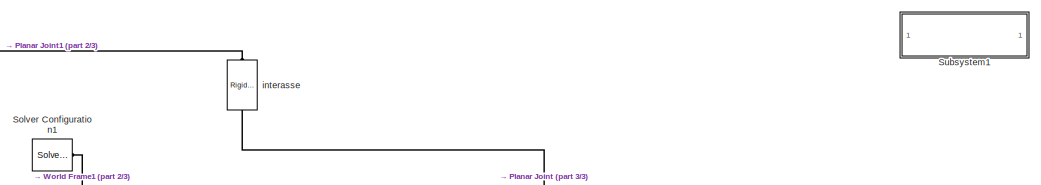
[diagram: root canvas - part 1/3, top center region]
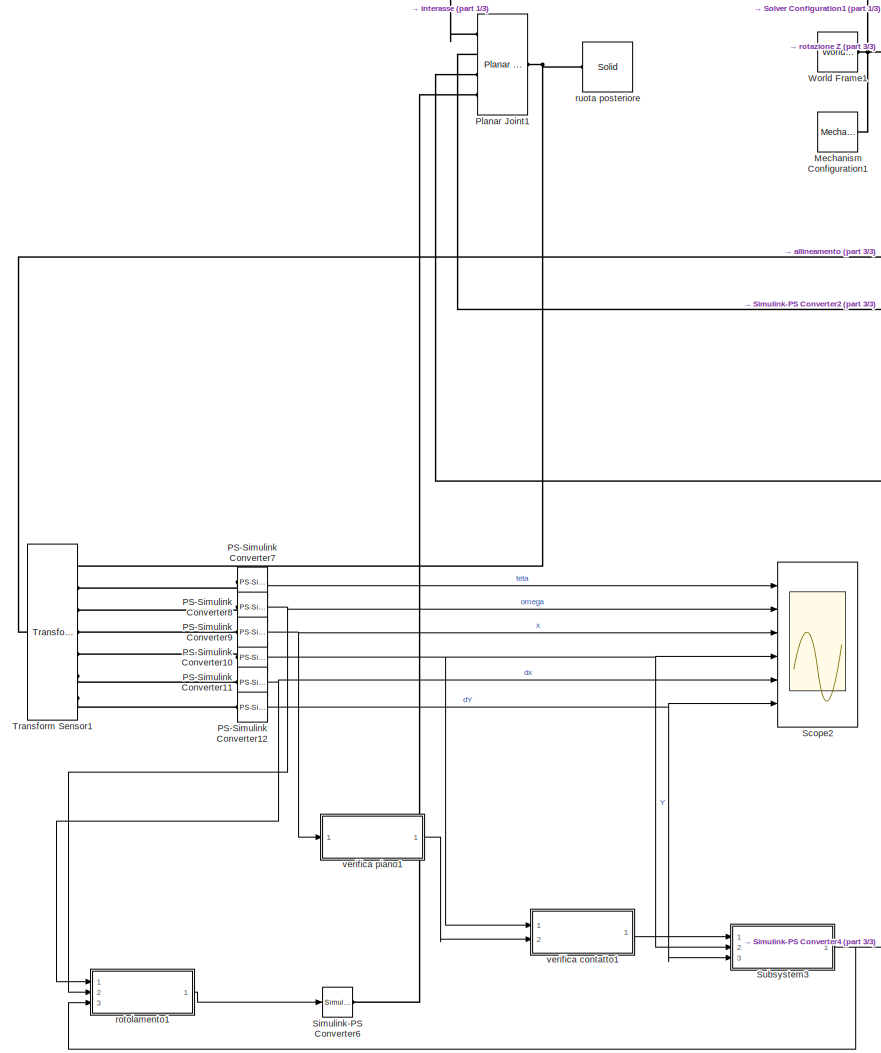
[diagram: root canvas - part 2/3, left side, full height]
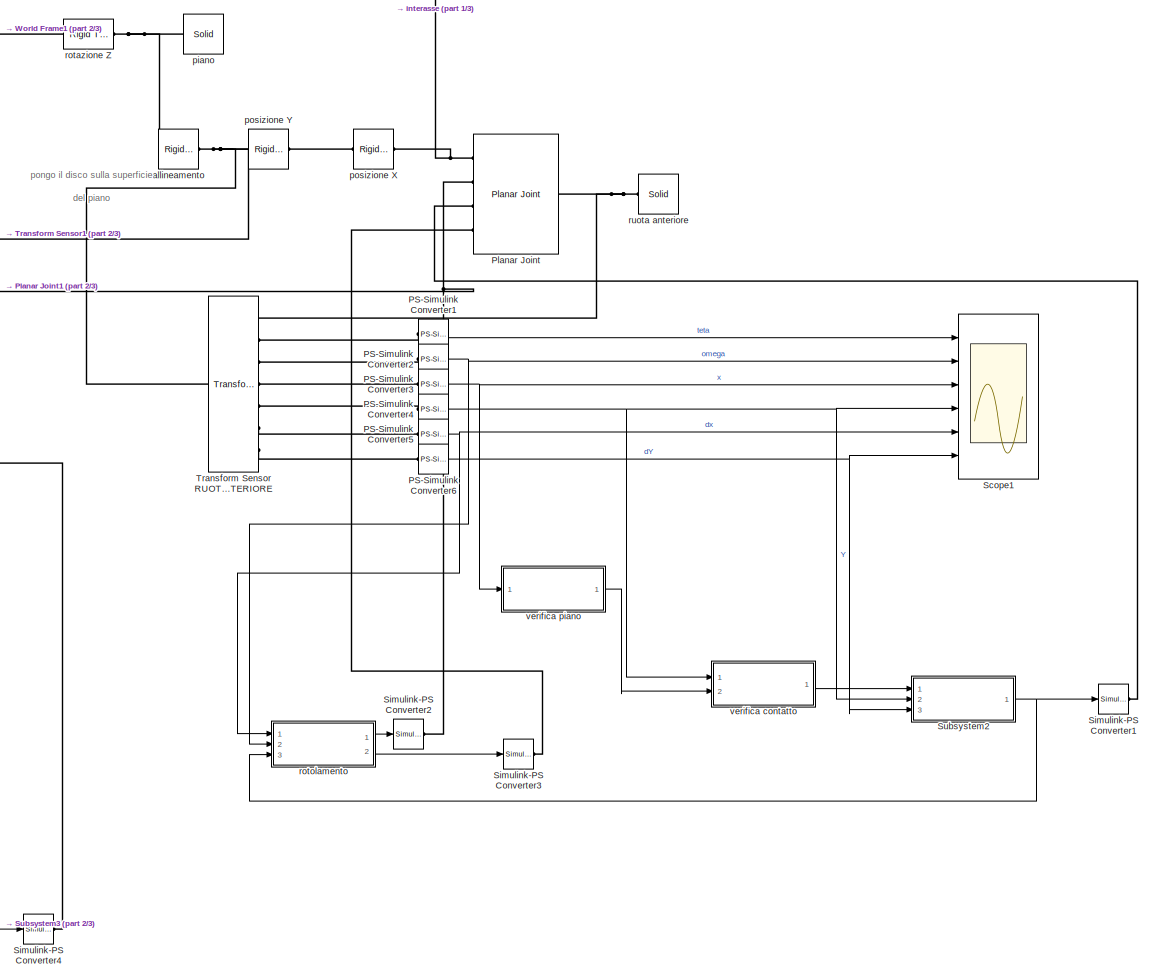
[diagram: root canvas - part 3/3, right side, full height]
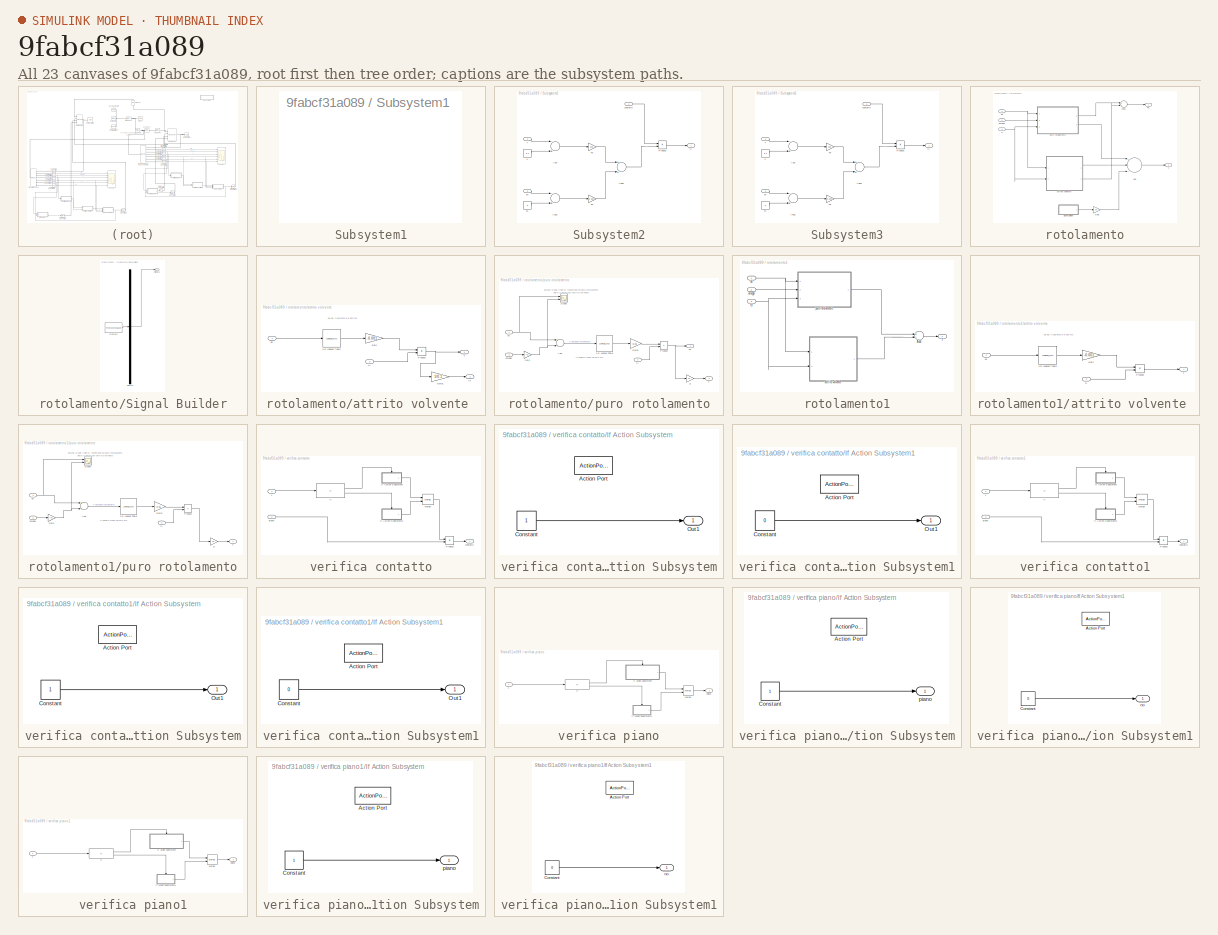
[diagram: thumbnail index - all 23 canvases of the model, root first then tree order]
MODEL slx_9fabcf31a089
KIND model
CONFIG AbsTol = auto
CONFIG EnableMultiTasking = on
CONFIG FixedStep = auto
CONFIG MaxStep = auto
CONFIG MinStep = auto
CONFIG RelTol = 1e-3
CONFIG SampleTimeConstraint = Unconstrained
CONFIG Solver = VariableStepAuto
CONFIG SolverName = VariableStepAuto
CONFIG StartTime = 0.0
CONFIG StopTime = 10.0
BLOCK [Reference] Mechanism Configuration1  REF=sm_lib/Utilities/Mechanism
Configuration
  Ports = [0, 0, 0, 0, 0, 0, 1]
  SourceBlock = sm_lib/Utilities/Mechanism\nConfiguration
  SourceProductBaseCode = MS
  SourceProductName = Simscape Multibody
  SourceType = Mechanism\nConfiguration
BLOCK [Reference] PS-Simulink Converter1  REF=nesl_utility/PS-Simulink
Converter
  Ports = [0, 1, 0, 0, 0, 1]
  SourceBlock = nesl_utility/PS-Simulink\nConverter
  SourceProductBaseCode = SS
  SourceProductName = Simscape
  SourceType = PS-Simulink\nConverter
BLOCK [Reference] PS-Simulink Converter10  REF=nesl_utility/PS-Simulink
Converter
  Ports = [0, 1, 0, 0, 0, 1]
  SourceBlock = nesl_utility/PS-Simulink\nConverter
  SourceProductBaseCode = SS
  SourceProductName = Simscape
  SourceType = PS-Simulink\nConverter
BLOCK [Reference] PS-Simulink Converter11  REF=nesl_utility/PS-Simulink
Converter
  Ports = [0, 1, 0, 0, 0, 1]
  SourceBlock = nesl_utility/PS-Simulink\nConverter
  SourceProductBaseCode = SS
  SourceProductName = Simscape
  SourceType = PS-Simulink\nConverter
BLOCK [Reference] PS-Simulink Converter12  REF=nesl_utility/PS-Simulink
Converter
  Ports = [0, 1, 0, 0, 0, 1]
  SourceBlock = nesl_utility/PS-Simulink\nConverter
  SourceProductBaseCode = SS
  SourceProductName = Simscape
  SourceType = PS-Simulink\nConverter
BLOCK [Reference] PS-Simulink Converter2  REF=nesl_utility/PS-Simulink
Converter
  Ports = [0, 1, 0, 0, 0, 1]
  SourceBlock = nesl_utility/PS-Simulink\nConverter
  SourceProductBaseCode = SS
  SourceProductName = Simscape
  SourceType = PS-Simulink\nConverter
BLOCK [Reference] PS-Simulink Converter3  REF=nesl_utility/PS-Simulink
Converter
  Ports = [0, 1, 0, 0, 0, 1]
  SourceBlock = nesl_utility/PS-Simulink\nConverter
  SourceProductBaseCode = SS
  SourceProductName = Simscape
  SourceType = PS-Simulink\nConverter
BLOCK [Reference] PS-Simulink Converter4  REF=nesl_utility/PS-Simulink
Converter
  Ports = [0, 1, 0, 0, 0, 1]
  SourceBlock = nesl_utility/PS-Simulink\nConverter
  SourceProductBaseCode = SS
  SourceProductName = Simscape
  SourceType = PS-Simulink\nConverter
BLOCK [Reference] PS-Simulink Converter5  REF=nesl_utility/PS-Simulink
Converter
  Ports = [0, 1, 0, 0, 0, 1]
  SourceBlock = nesl_utility/PS-Simulink\nConverter
  SourceProductBaseCode = SS
  SourceProductName = Simscape
  SourceType = PS-Simulink\nConverter
BLOCK [Reference] PS-Simulink Converter6  REF=nesl_utility/PS-Simulink
Converter
  Ports = [0, 1, 0, 0, 0, 1]
  SourceBlock = nesl_utility/PS-Simulink\nConverter
  SourceProductBaseCode = SS
  SourceProductName = Simscape
  SourceType = PS-Simulink\nConverter
BLOCK [Reference] PS-Simulink Converter7  REF=nesl_utility/PS-Simulink
Converter
  Ports = [0, 1, 0, 0, 0, 1]
  SourceBlock = nesl_utility/PS-Simulink\nConverter
  SourceProductBaseCode = SS
  SourceProductName = Simscape
  SourceType = PS-Simulink\nConverter
BLOCK [Reference] PS-Simulink Converter8  REF=nesl_utility/PS-Simulink
Converter
  Ports = [0, 1, 0, 0, 0, 1]
  SourceBlock = nesl_utility/PS-Simulink\nConverter
  SourceProductBaseCode = SS
  SourceProductName = Simscape
  SourceType = PS-Simulink\nConverter
BLOCK [Reference] PS-Simulink Converter9  REF=nesl_utility/PS-Simulink
Converter
  Ports = [0, 1, 0, 0, 0, 1]
  SourceBlock = nesl_utility/PS-Simulink\nConverter
  SourceProductBaseCode = SS
  SourceProductName = Simscape
  SourceType = PS-Simulink\nConverter
BLOCK [Reference] Planar Joint  REF=sm_lib/Joints/Planar Joint
  Ports = [0, 0, 0, 0, 0, 4, 1]
  SourceBlock = sm_lib/Joints/Planar Joint
  SourceProductBaseCode = MS
  SourceProductName = Simscape Multibody
  SourceType = Planar Joint
BLOCK [Reference] Planar Joint1  REF=sm_lib/Joints/Planar Joint
  Ports = [0, 0, 0, 0, 0, 4, 1]
  SourceBlock = sm_lib/Joints/Planar Joint
  SourceProductBaseCode = MS
  SourceProductName = Simscape Multibody
  SourceType = Planar Joint
BLOCK [Scope] Scope1
  Floating = off
  NumInputPorts = 6
  Ports = [6]
  ScopeSpecificationString = Simulink.scopes.TimeScopeBlockCfg('CurrentConfiguration', extmgr.ConfigurationSet(extmgr.Configuration('Core','General UI',true),extmgr.Configuration('Core','Source UI',true),extmgr.Configuration('Sources','WiredSimulink',true,'SampleTime','1e-3','DataLoggingVariableName','ScopeData1'),extmgr.Configuration('Visuals','Time Domain',true,'SerializedDisplays',{struct('MinYLimReal','-0.3927','MaxYLimRe...<+4755ch>
BLOCK [Scope] Scope2
  Floating = off
  NumInputPorts = 6
  Ports = [6]
  ScopeSpecificationString = Simulink.scopes.TimeScopeBlockCfg('CurrentConfiguration', extmgr.ConfigurationSet(extmgr.Configuration('Core','General UI',true),extmgr.Configuration('Core','Source UI',true),extmgr.Configuration('Sources','WiredSimulink',true,'SampleTime','1e-3','DataLoggingVariableName','ScopeData2'),extmgr.Configuration('Visuals','Time Domain',true,'SerializedDisplays',{struct('MinYLimReal','-0.3927','MaxYLimRe...<+4755ch>
BLOCK [Reference] Simulink-PS Converter1  REF=nesl_utility/Simulink-PS
Converter
  Ports = [1, 0, 0, 0, 0, 0, 1]
  SourceBlock = nesl_utility/Simulink-PS\nConverter
  SourceProductBaseCode = SS
  SourceProductName = Simscape
  SourceType = Simulink-PS\nConverter
BLOCK [Reference] Simulink-PS Converter2  REF=nesl_utility/Simulink-PS
Converter
  Ports = [1, 0, 0, 0, 0, 0, 1]
  SourceBlock = nesl_utility/Simulink-PS\nConverter
  SourceProductBaseCode = SS
  SourceProductName = Simscape
  SourceType = Simulink-PS\nConverter
BLOCK [Reference] Simulink-PS Converter3  REF=nesl_utility/Simulink-PS
Converter
  Ports = [1, 0, 0, 0, 0, 0, 1]
  SourceBlock = nesl_utility/Simulink-PS\nConverter
  SourceProductBaseCode = SS
  SourceProductName = Simscape
  SourceType = Simulink-PS\nConverter
BLOCK [Reference] Simulink-PS Converter4  REF=nesl_utility/Simulink-PS
Converter
  Ports = [1, 0, 0, 0, 0, 0, 1]
  SourceBlock = nesl_utility/Simulink-PS\nConverter
  SourceProductBaseCode = SS
  SourceProductName = Simscape
  SourceType = Simulink-PS\nConverter
BLOCK [Reference] Simulink-PS Converter6  REF=nesl_utility/Simulink-PS
Converter
  Ports = [1, 0, 0, 0, 0, 0, 1]
  SourceBlock = nesl_utility/Simulink-PS\nConverter
  SourceProductBaseCode = SS
  SourceProductName = Simscape
  SourceType = Simulink-PS\nConverter
BLOCK [Reference] Solver Configuration1  REF=nesl_utility/Solver
Configuration
  Ports = [0, 0, 0, 0, 0, 0, 1]
  SourceBlock = nesl_utility/Solver\nConfiguration
  SourceProductBaseCode = SS
  SourceProductName = Simscape
  SourceType = Solver\nConfiguration
BLOCK [SubSystem] Subsystem1
  OpenFcn = open_system('sm_lib')
  Ports = []
  RequestExecContextInheritance = off
  ShowPortLabels = none
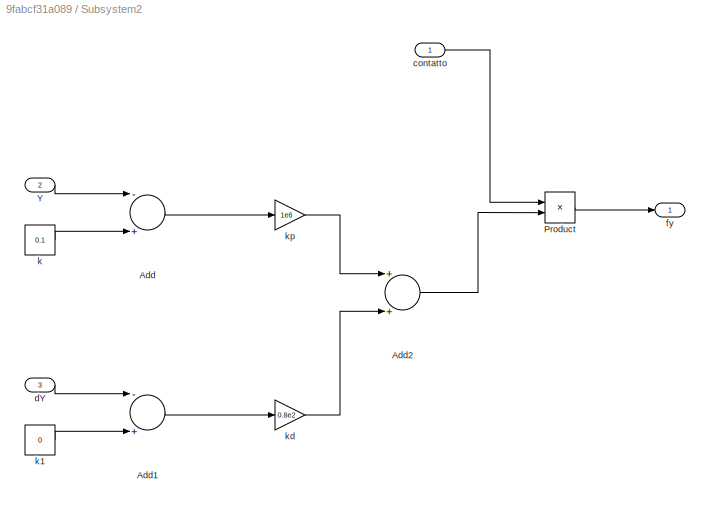
BLOCK [SubSystem] Subsystem2
  Ports = [3, 1]
  RequestExecContextInheritance = off
BLOCK [Sum] Subsystem2/Add
  InputSameDT = off
  Inputs = -+
  OutDataTypeStr = Inherit: Inherit via internal rule
  Ports = [2, 1]
  SaturateOnIntegerOverflow = off
BLOCK [Sum] Subsystem2/Add1
  InputSameDT = off
  Inputs = -+
  OutDataTypeStr = Inherit: Inherit via internal rule
  Ports = [2, 1]
  SaturateOnIntegerOverflow = off
BLOCK [Sum] Subsystem2/Add2
  InputSameDT = off
  OutDataTypeStr = Inherit: Inherit via internal rule
  Ports = [2, 1]
  SaturateOnIntegerOverflow = off
BLOCK [Product] Subsystem2/Product
  InputSameDT = off
  OutDataTypeStr = Inherit: Inherit via internal rule
  Ports = [2, 1]
  RndMeth = Floor
  SaturateOnIntegerOverflow = off
BLOCK [Inport] Subsystem2/Y
  IconDisplay = Port number
  Port = 2
BLOCK [Inport] Subsystem2/contatto
  IconDisplay = Port number
BLOCK [Inport] Subsystem2/dY
  IconDisplay = Port number
  Port = 3
BLOCK [Outport] Subsystem2/fy 
  IconDisplay = Port number
BLOCK [Constant] Subsystem2/k
  Value = 0.1
BLOCK [Constant] Subsystem2/k1
  Value = 0
BLOCK [Gain] Subsystem2/kd
  Gain = 0.8e2
  OutDataTypeStr = Inherit: Inherit via internal rule
  ParamDataTypeStr = Inherit: Inherit via internal rule
  SaturateOnIntegerOverflow = off
BLOCK [Gain] Subsystem2/kp
  Gain = 1e6
  OutDataTypeStr = Inherit: Inherit via internal rule
  ParamDataTypeStr = Inherit: Inherit via internal rule
  SaturateOnIntegerOverflow = off
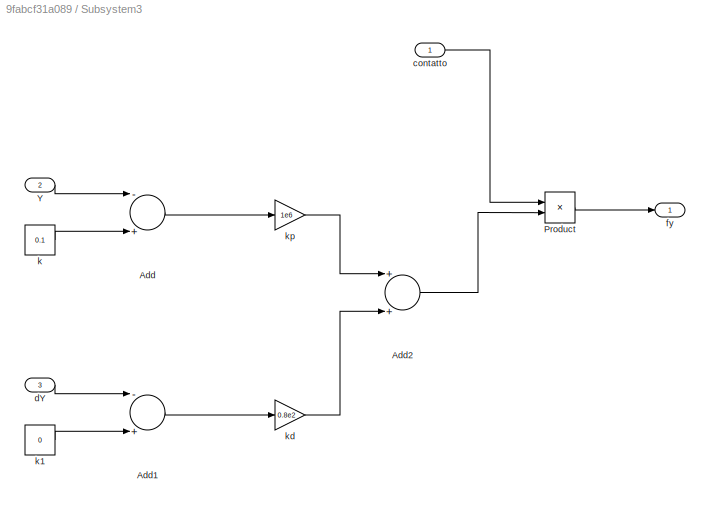
BLOCK [SubSystem] Subsystem3
  Ports = [3, 1]
  RequestExecContextInheritance = off
BLOCK [Sum] Subsystem3/Add
  InputSameDT = off
  Inputs = -+
  OutDataTypeStr = Inherit: Inherit via internal rule
  Ports = [2, 1]
  SaturateOnIntegerOverflow = off
BLOCK [Sum] Subsystem3/Add1
  InputSameDT = off
  Inputs = -+
  OutDataTypeStr = Inherit: Inherit via internal rule
  Ports = [2, 1]
  SaturateOnIntegerOverflow = off
BLOCK [Sum] Subsystem3/Add2
  InputSameDT = off
  OutDataTypeStr = Inherit: Inherit via internal rule
  Ports = [2, 1]
  SaturateOnIntegerOverflow = off
BLOCK [Product] Subsystem3/Product
  InputSameDT = off
  OutDataTypeStr = Inherit: Inherit via internal rule
  Ports = [2, 1]
  RndMeth = Floor
  SaturateOnIntegerOverflow = off
BLOCK [Inport] Subsystem3/Y
  IconDisplay = Port number
  Port = 2
BLOCK [Inport] Subsystem3/contatto
  IconDisplay = Port number
BLOCK [Inport] Subsystem3/dY
  IconDisplay = Port number
  Port = 3
BLOCK [Outport] Subsystem3/fy 
  IconDisplay = Port number
BLOCK [Constant] Subsystem3/k
  Value = 0.1
BLOCK [Constant] Subsystem3/k1
  Value = 0
BLOCK [Gain] Subsystem3/kd
  Gain = 0.8e2
  OutDataTypeStr = Inherit: Inherit via internal rule
  ParamDataTypeStr = Inherit: Inherit via internal rule
  SaturateOnIntegerOverflow = off
BLOCK [Gain] Subsystem3/kp
  Gain = 1e6
  OutDataTypeStr = Inherit: Inherit via internal rule
  ParamDataTypeStr = Inherit: Inherit via internal rule
  SaturateOnIntegerOverflow = off
BLOCK [Reference] Transform Sensor RUOTA ANTERIORE  REF=sm_lib/Frames and
Transforms/Transform
Sensor
  Ports = [0, 0, 0, 0, 0, 1, 7]
  SourceBlock = sm_lib/Frames and\nTransforms/Transform\nSensor
  SourceProductBaseCode = MS
  SourceProductName = Simscape Multibody
  SourceType = Transform\nSensor
BLOCK [Reference] Transform Sensor1  REF=sm_lib/Frames and
Transforms/Transform
Sensor
  Ports = [0, 0, 0, 0, 0, 1, 7]
  SourceBlock = sm_lib/Frames and\nTransforms/Transform\nSensor
  SourceProductBaseCode = MS
  SourceProductName = Simscape Multibody
  SourceType = Transform\nSensor
BLOCK [Reference] World Frame1  REF=sm_lib/Frames and
Transforms/World Frame
  Ports = [0, 0, 0, 0, 0, 0, 1]
  SourceBlock = sm_lib/Frames and\nTransforms/World Frame
  SourceProductBaseCode = MS
  SourceProductName = Simscape Multibody
  SourceType = World Frame
BLOCK [Reference] allineamento  REF=sm_lib/Frames and
Transforms/Rigid
Transform
  Ports = [0, 0, 0, 0, 0, 1, 1]
  SourceBlock = sm_lib/Frames and\nTransforms/Rigid\nTransform
  SourceProductBaseCode = MS
  SourceProductName = Simscape Multibody
  SourceType = Rigid\nTransform
BLOCK [Reference] interasse  REF=sm_lib/Frames and
Transforms/Rigid
Transform
  Ports = [0, 0, 0, 0, 0, 1, 1]
  SourceBlock = sm_lib/Frames and\nTransforms/Rigid\nTransform
  SourceProductBaseCode = MS
  SourceProductName = Simscape Multibody
  SourceType = Rigid\nTransform
BLOCK [Reference] piano  REF=sm_lib/Body Elements/Solid
  Ports = [0, 0, 0, 0, 0, 0, 1]
  SourceBlock = sm_lib/Body Elements/Solid
  SourceProductBaseCode = MS
  SourceProductName = Simscape Multibody
  SourceType = Solid
BLOCK [Reference] posizione X  REF=sm_lib/Frames and
Transforms/Rigid
Transform
  Ports = [0, 0, 0, 0, 0, 1, 1]
  SourceBlock = sm_lib/Frames and\nTransforms/Rigid\nTransform
  SourceProductBaseCode = MS
  SourceProductName = Simscape Multibody
  SourceType = Rigid\nTransform
BLOCK [Reference] posizione Y  REF=sm_lib/Frames and
Transforms/Rigid
Transform
  Ports = [0, 0, 0, 0, 0, 1, 1]
  SourceBlock = sm_lib/Frames and\nTransforms/Rigid\nTransform
  SourceProductBaseCode = MS
  SourceProductName = Simscape Multibody
  SourceType = Rigid\nTransform
BLOCK [Reference] rotazione Z  REF=sm_lib/Frames and
Transforms/Rigid
Transform
  Ports = [0, 0, 0, 0, 0, 1, 1]
  SourceBlock = sm_lib/Frames and\nTransforms/Rigid\nTransform
  SourceProductBaseCode = MS
  SourceProductName = Simscape Multibody
  SourceType = Rigid\nTransform
BLOCK [SubSystem] rotolamento
  Ports = [3, 2]
  RequestExecContextInheritance = off
BLOCK [Sum] rotolamento/Add
  InputSameDT = off
  Inputs = +-+
  OutDataTypeStr = Inherit: Inherit via internal rule
  Ports = [3, 1]
  SaturateOnIntegerOverflow = off
BLOCK [Sum] rotolamento/Add1
  InputSameDT = off
  OutDataTypeStr = Inherit: Inherit via internal rule
  Ports = [2, 1]
  SaturateOnIntegerOverflow = off
BLOCK [Outport] rotolamento/Fa
  IconDisplay = Port number
BLOCK [Gain] rotolamento/Gain
  Gain = -1e-2
  OutDataTypeStr = Inherit: Inherit via internal rule
  ParamDataTypeStr = Inherit: Inherit via internal rule
  SaturateOnIntegerOverflow = off
BLOCK [SubSystem] rotolamento/Signal Builder
  ClipboardFcn = sigbuilder_block('clipboard');
  CloseFcn = sigbuilder_block('close');
  ContinueFcn = sigbuilder_block('continue');
  CopyFcn = sigbuilder_block('copy');
  DeleteFcn = sigbuilder_block('delete');
  LoadFcn = sigbuilder_block('load');
  MaskHideContents = on
  ModelCloseFcn = sigbuilder_block('modelClose');
  NameChangeFcn = sigbuilder_block('namechange');
  OpenFcn = sigbuilder_block('open',[319.2 116.4 550.8 400.2 ]);
  PauseFcn = sigbuilder_block('pause');
  Ports = [0, 1]
  PreSaveFcn = sigbuilder_block('preSave');
  RequestExecContextInheritance = off
  StartFcn = sigbuilder_block('start');
  StopFcn = sigbuilder_block('stop');
  Tag = STV Subsys
BLOCK [Demux] rotolamento/Signal Builder/Demux
  Outputs = 1
  Ports = [1, 1]
  Tag = STV Demux
BLOCK [FromWorkspace] rotolamento/Signal Builder/FromWs
  SampleTime = 0
  Tag = STV FromWs
  VariableName = tuvar
  ZeroCross = on
BLOCK [Outport] rotolamento/Signal Builder/Signal 1
  IconDisplay = Port number
  Tag = STV Outport
BLOCK [Outport] rotolamento/T
  IconDisplay = Port number
  Port = 2
BLOCK [SubSystem] rotolamento/attrito volvente 
  Ports = [2, 2]
  RequestExecContextInheritance = off
BLOCK [Lookup_n-D] rotolamento/attrito volvente /1-D Lookup Table
  BreakpointsForDimension1 = [-5:0.1:5]
  InternalRulePriority = Speed
  NumberOfTableDimensions = 1
  Ports = [1, 1]
  RndMeth = Simplest
  Table = tanh([-5:0.1:5])
BLOCK [Gain] rotolamento/attrito volvente /Gain
  Gain = -0.001
  OutDataTypeStr = Inherit: Inherit via internal rule
  ParamDataTypeStr = Inherit: Inherit via internal rule
  SaturateOnIntegerOverflow = off
BLOCK [Gain] rotolamento/attrito volvente /Gain1
  Gain = 1/0.1
  OutDataTypeStr = Inherit: Inherit via internal rule
  ParamDataTypeStr = Inherit: Inherit via internal rule
  SaturateOnIntegerOverflow = off
BLOCK [Product] rotolamento/attrito volvente /Product
  InputSameDT = off
  OutDataTypeStr = Inherit: Inherit via internal rule
  Ports = [2, 1]
  RndMeth = Floor
  SaturateOnIntegerOverflow = off
BLOCK [Outport] rotolamento/attrito volvente /T
  IconDisplay = Port number
BLOCK [Inport] rotolamento/attrito volvente /dx
  IconDisplay = Port number
BLOCK [Outport] rotolamento/attrito volvente /fx
  IconDisplay = Port number
  Port = 2
BLOCK [Inport] rotolamento/attrito volvente /fy
  IconDisplay = Port number
  Port = 2
BLOCK [Inport] rotolamento/dx
  IconDisplay = Port number
BLOCK [Inport] rotolamento/fy
  IconDisplay = Port number
  Port = 3
BLOCK [Inport] rotolamento/omega
  IconDisplay = Port number
  Port = 2
BLOCK [SubSystem] rotolamento/puro rotolamento
  Ports = [3, 2]
  RequestExecContextInheritance = off
BLOCK [Lookup_n-D] rotolamento/puro rotolamento/1-D Lookup Table
  BreakpointsForDimension1 = [-5:0.1:5]
  InternalRulePriority = Speed
  NumberOfTableDimensions = 1
  Ports = [1, 1]
  RndMeth = Simplest
  Table = tanh([-5:0.1:5])
BLOCK [Sum] rotolamento/puro rotolamento/Add
  InputSameDT = off
  Inputs = +-
  OutDataTypeStr = Inherit: Inherit via internal rule
  Ports = [2, 1]
  SaturateOnIntegerOverflow = off
BLOCK [Outport] rotolamento/puro rotolamento/Fa
  IconDisplay = Port number
BLOCK [Gain] rotolamento/puro rotolamento/Gain
  Gain = -0.1
  OutDataTypeStr = Inherit: Inherit via internal rule
  ParamDataTypeStr = Inherit: Inherit via internal rule
  SaturateOnIntegerOverflow = off
BLOCK [Gain] rotolamento/puro rotolamento/Gain1
  Gain = -0.05
  OutDataTypeStr = Inherit: Inherit via internal rule
  ParamDataTypeStr = Inherit: Inherit via internal rule
  SaturateOnIntegerOverflow = off
BLOCK [Product] rotolamento/puro rotolamento/Product
  InputSameDT = off
  OutDataTypeStr = Inherit: Inherit via internal rule
  Ports = [2, 1]
  RndMeth = Floor
  SaturateOnIntegerOverflow = off
BLOCK [Gain] rotolamento/puro rotolamento/R
  Gain = 0.1
  OutDataTypeStr = Inherit: Inherit via internal rule
  ParamDataTypeStr = Inherit: Inherit via internal rule
  SaturateOnIntegerOverflow = off
BLOCK [Scope] rotolamento/puro rotolamento/Scope
  Floating = off
  NumInputPorts = 2
  Ports = [2]
  ScopeSpecificationString = Simulink.scopes.TimeScopeBlockCfg('CurrentConfiguration', extmgr.ConfigurationSet(extmgr.Configuration('Core','General UI',true),extmgr.Configuration('Core','Source UI',true),extmgr.Configuration('Sources','WiredSimulink',true,'DataLoggingVariableName','ScopeData2'),extmgr.Configuration('Visuals','Time Domain',true,'SerializedDisplays',{struct('MinYLimReal','-0.0625','MaxYLimReal','0.5625','YLabel...<+1362ch>
BLOCK [Outport] rotolamento/puro rotolamento/T
  IconDisplay = Port number
  Port = 2
BLOCK [Inport] rotolamento/puro rotolamento/dx
  IconDisplay = Port number
BLOCK [Inport] rotolamento/puro rotolamento/fy
  IconDisplay = Port number
  Port = 3
BLOCK [Inport] rotolamento/puro rotolamento/omega
  IconDisplay = Port number
  Port = 2
BLOCK [SubSystem] rotolamento1
  Ports = [3, 1]
  RequestExecContextInheritance = off
BLOCK [Sum] rotolamento1/Add
  InputSameDT = off
  Inputs = +-
  OutDataTypeStr = Inherit: Inherit via internal rule
  Ports = [2, 1]
  SaturateOnIntegerOverflow = off
BLOCK [Outport] rotolamento1/T
  IconDisplay = Port number
BLOCK [SubSystem] rotolamento1/attrito volvente 
  Ports = [2, 1]
  RequestExecContextInheritance = off
BLOCK [Lookup_n-D] rotolamento1/attrito volvente /1-D Lookup Table
  BreakpointsForDimension1 = [-5:0.1:5]
  InternalRulePriority = Speed
  NumberOfTableDimensions = 1
  Ports = [1, 1]
  RndMeth = Simplest
  Table = tanh([-5:0.1:5])
BLOCK [Gain] rotolamento1/attrito volvente /Gain
  Gain = -0.001
  OutDataTypeStr = Inherit: Inherit via internal rule
  ParamDataTypeStr = Inherit: Inherit via internal rule
  SaturateOnIntegerOverflow = off
BLOCK [Product] rotolamento1/attrito volvente /Product
  InputSameDT = off
  OutDataTypeStr = Inherit: Inherit via internal rule
  Ports = [2, 1]
  RndMeth = Floor
  SaturateOnIntegerOverflow = off
BLOCK [Outport] rotolamento1/attrito volvente /T
  IconDisplay = Port number
BLOCK [Inport] rotolamento1/attrito volvente /dx
  IconDisplay = Port number
BLOCK [Inport] rotolamento1/attrito volvente /fy
  IconDisplay = Port number
  Port = 2
BLOCK [Inport] rotolamento1/dx
  IconDisplay = Port number
BLOCK [Inport] rotolamento1/fy
  IconDisplay = Port number
  Port = 3
BLOCK [Inport] rotolamento1/omega
  IconDisplay = Port number
  Port = 2
BLOCK [SubSystem] rotolamento1/puro rotolamento
  Ports = [3, 1]
  RequestExecContextInheritance = off
BLOCK [Lookup_n-D] rotolamento1/puro rotolamento/1-D Lookup Table
  BreakpointsForDimension1 = [-5:0.1:5]
  InternalRulePriority = Speed
  NumberOfTableDimensions = 1
  Ports = [1, 1]
  RndMeth = Simplest
  Table = tanh([-5:0.1:5])
BLOCK [Sum] rotolamento1/puro rotolamento/Add
  InputSameDT = off
  Inputs = +-
  OutDataTypeStr = Inherit: Inherit via internal rule
  Ports = [2, 1]
  SaturateOnIntegerOverflow = off
BLOCK [Gain] rotolamento1/puro rotolamento/Gain
  Gain = -0.1
  OutDataTypeStr = Inherit: Inherit via internal rule
  ParamDataTypeStr = Inherit: Inherit via internal rule
  SaturateOnIntegerOverflow = off
BLOCK [Gain] rotolamento1/puro rotolamento/Gain1
  Gain = -0.05
  OutDataTypeStr = Inherit: Inherit via internal rule
  ParamDataTypeStr = Inherit: Inherit via internal rule
  SaturateOnIntegerOverflow = off
BLOCK [Product] rotolamento1/puro rotolamento/Product
  InputSameDT = off
  OutDataTypeStr = Inherit: Inherit via internal rule
  Ports = [2, 1]
  RndMeth = Floor
  SaturateOnIntegerOverflow = off
BLOCK [Gain] rotolamento1/puro rotolamento/R
  Gain = 0.1
  OutDataTypeStr = Inherit: Inherit via internal rule
  ParamDataTypeStr = Inherit: Inherit via internal rule
  SaturateOnIntegerOverflow = off
BLOCK [Scope] rotolamento1/puro rotolamento/Scope
  Floating = off
  NumInputPorts = 2
  Ports = [2]
  ScopeSpecificationString = Simulink.scopes.TimeScopeBlockCfg('CurrentConfiguration', extmgr.ConfigurationSet(extmgr.Configuration('Core','General UI',true),extmgr.Configuration('Core','Source UI',true),extmgr.Configuration('Sources','WiredSimulink',true,'DataLoggingVariableName','ScopeData2'),extmgr.Configuration('Visuals','Time Domain',true,'SerializedDisplays',{struct('MinYLimReal','-0.0625','MaxYLimReal','0.5625','YLabel...<+1362ch>
BLOCK [Outport] rotolamento1/puro rotolamento/T
  IconDisplay = Port number
BLOCK [Inport] rotolamento1/puro rotolamento/dx
  IconDisplay = Port number
BLOCK [Inport] rotolamento1/puro rotolamento/fy
  IconDisplay = Port number
  Port = 3
BLOCK [Inport] rotolamento1/puro rotolamento/omega
  IconDisplay = Port number
  Port = 2
BLOCK [Reference] ruota anteriore  REF=sm_lib/Body Elements/Solid
  Ports = [0, 0, 0, 0, 0, 0, 1]
  SourceBlock = sm_lib/Body Elements/Solid
  SourceProductBaseCode = MS
  SourceProductName = Simscape Multibody
  SourceType = Solid
BLOCK [Reference] ruota posteriore  REF=sm_lib/Body Elements/Solid
  Ports = [0, 0, 0, 0, 0, 0, 1]
  SourceBlock = sm_lib/Body Elements/Solid
  SourceProductBaseCode = MS
  SourceProductName = Simscape Multibody
  SourceType = Solid
BLOCK [SubSystem] verifica contatto
  Ports = [2, 1]
  RequestExecContextInheritance = off
BLOCK [If] verifica contatto/If
  IfExpression = u1 <=0.1
  Ports = [1, 2]
BLOCK [SubSystem] verifica contatto/If Action Subsystem
  Ports = [0, 1, 0, 0, 0, 0, 0, 1]
  RequestExecContextInheritance = off
  TreatAsAtomicUnit = on
BLOCK [ActionPort] verifica contatto/If Action Subsystem/Action Port
  ActionPortLabel = if(u1 <=0.1)
BLOCK [Constant] verifica contatto/If Action Subsystem/Constant
BLOCK [Outport] verifica contatto/If Action Subsystem/Out1
  IconDisplay = Port number
BLOCK [SubSystem] verifica contatto/If Action Subsystem1
  Ports = [0, 1, 0, 0, 0, 0, 0, 1]
  RequestExecContextInheritance = off
  TreatAsAtomicUnit = on
BLOCK [ActionPort] verifica contatto/If Action Subsystem1/Action Port
  ActionPortLabel = else
BLOCK [Constant] verifica contatto/If Action Subsystem1/Constant
  Value = 0
BLOCK [Outport] verifica contatto/If Action Subsystem1/Out1
  IconDisplay = Port number
BLOCK [Merge] verifica contatto/Merge
  Ports = [2, 1]
BLOCK [Product] verifica contatto/Product
  InputSameDT = off
  OutDataTypeStr = Inherit: Inherit via internal rule
  Ports = [2, 1]
  RndMeth = Floor
  SaturateOnIntegerOverflow = off
BLOCK [Inport] verifica contatto/Y
  IconDisplay = Port number
BLOCK [Outport] verifica contatto/contatto
  IconDisplay = Port number
BLOCK [Inport] verifica contatto/piano
  IconDisplay = Port number
  Port = 2
BLOCK [SubSystem] verifica contatto1
  Ports = [2, 1]
  RequestExecContextInheritance = off
BLOCK [If] verifica contatto1/If
  IfExpression = u1 <=0.1
  Ports = [1, 2]
BLOCK [SubSystem] verifica contatto1/If Action Subsystem
  Ports = [0, 1, 0, 0, 0, 0, 0, 1]
  RequestExecContextInheritance = off
  TreatAsAtomicUnit = on
BLOCK [ActionPort] verifica contatto1/If Action Subsystem/Action Port
  ActionPortLabel = if(u1 <=0.1)
BLOCK [Constant] verifica contatto1/If Action Subsystem/Constant
BLOCK [Outport] verifica contatto1/If Action Subsystem/Out1
  IconDisplay = Port number
BLOCK [SubSystem] verifica contatto1/If Action Subsystem1
  Ports = [0, 1, 0, 0, 0, 0, 0, 1]
  RequestExecContextInheritance = off
  TreatAsAtomicUnit = on
BLOCK [ActionPort] verifica contatto1/If Action Subsystem1/Action Port
  ActionPortLabel = else
BLOCK [Constant] verifica contatto1/If Action Subsystem1/Constant
  Value = 0
BLOCK [Outport] verifica contatto1/If Action Subsystem1/Out1
  IconDisplay = Port number
BLOCK [Merge] verifica contatto1/Merge
  Ports = [2, 1]
BLOCK [Product] verifica contatto1/Product
  InputSameDT = off
  OutDataTypeStr = Inherit: Inherit via internal rule
  Ports = [2, 1]
  RndMeth = Floor
  SaturateOnIntegerOverflow = off
BLOCK [Inport] verifica contatto1/Y
  IconDisplay = Port number
BLOCK [Outport] verifica contatto1/contatto
  IconDisplay = Port number
BLOCK [Inport] verifica contatto1/piano
  IconDisplay = Port number
  Port = 2
BLOCK [SubSystem] verifica piano
  Ports = [1, 1]
  RequestExecContextInheritance = off
BLOCK [If] verifica piano/If
  IfExpression = u1<5 & u1>-5
  Ports = [1, 2]
BLOCK [SubSystem] verifica piano/If Action Subsystem
  Ports = [0, 1, 0, 0, 0, 0, 0, 1]
  RequestExecContextInheritance = off
  TreatAsAtomicUnit = on
BLOCK [ActionPort] verifica piano/If Action Subsystem/Action Port
  ActionPortLabel = if(u1<5 & u1>-5)
BLOCK [Constant] verifica piano/If Action Subsystem/Constant
BLOCK [Outport] verifica piano/If Action Subsystem/piano
  IconDisplay = Port number
BLOCK [SubSystem] verifica piano/If Action Subsystem1
  Ports = [0, 1, 0, 0, 0, 0, 0, 1]
  RequestExecContextInheritance = off
  TreatAsAtomicUnit = on
BLOCK [ActionPort] verifica piano/If Action Subsystem1/Action Port
  ActionPortLabel = else
BLOCK [Constant] verifica piano/If Action Subsystem1/Constant
  Value = 0
BLOCK [Outport] verifica piano/If Action Subsystem1/no
  IconDisplay = Port number
BLOCK [Merge] verifica piano/Merge
  Ports = [2, 1]
BLOCK [Outport] verifica piano/piano
  IconDisplay = Port number
BLOCK [Inport] verifica piano/x
  IconDisplay = Port number
BLOCK [SubSystem] verifica piano1
  Ports = [1, 1]
  RequestExecContextInheritance = off
BLOCK [If] verifica piano1/If
  IfExpression = u1<5 & u1>-5
  Ports = [1, 2]
BLOCK [SubSystem] verifica piano1/If Action Subsystem
  Ports = [0, 1, 0, 0, 0, 0, 0, 1]
  RequestExecContextInheritance = off
  TreatAsAtomicUnit = on
BLOCK [ActionPort] verifica piano1/If Action Subsystem/Action Port
  ActionPortLabel = if(u1<5 & u1>-5)
BLOCK [Constant] verifica piano1/If Action Subsystem/Constant
BLOCK [Outport] verifica piano1/If Action Subsystem/piano
  IconDisplay = Port number
BLOCK [SubSystem] verifica piano1/If Action Subsystem1
  Ports = [0, 1, 0, 0, 0, 0, 0, 1]
  RequestExecContextInheritance = off
  TreatAsAtomicUnit = on
BLOCK [ActionPort] verifica piano1/If Action Subsystem1/Action Port
  ActionPortLabel = else
BLOCK [Constant] verifica piano1/If Action Subsystem1/Constant
  Value = 0
BLOCK [Outport] verifica piano1/If Action Subsystem1/no
  IconDisplay = Port number
BLOCK [Merge] verifica piano1/Merge
  Ports = [2, 1]
BLOCK [Outport] verifica piano1/piano
  IconDisplay = Port number
BLOCK [Inport] verifica piano1/x
  IconDisplay = Port number
ANNOTATION (root): pongo il disco sulla superficie del piano
ANNOTATION rotolamento/attrito volvente : da qui ricaviamo b e non mu
ANNOTATION rotolamento/puro rotolamento: poichè le due linee si incontrano ho puro rotolamento però lo perdo con l'attrito volvente
ANNOTATION rotolamento/puro rotolamento: in questo modo calcolo mu
ANNOTATION rotolamento1/attrito volvente : da qui ricaviamo b e non mu
ANNOTATION rotolamento1/puro rotolamento: poichè le due linee si incontrano ho puro rotolamento però lo perdo con l'attrito volvente
ANNOTATION rotolamento1/puro rotolamento: in questo modo calcolo mu
NET PS-Simulink Converter10:1 -> Scope2:4, Subsystem3:2, verifica contatto1:1
NET PS-Simulink Converter11:1 -> Scope2:5, rotolamento1:1
NET PS-Simulink Converter12:1 -> Scope2:6, Subsystem3:3
LINE PS-Simulink Converter1:1 -> Scope1:1
NET PS-Simulink Converter2:1 -> Scope1:2, rotolamento:2
NET PS-Simulink Converter3:1 -> Scope1:3, verifica piano:1
NET PS-Simulink Converter4:1 -> Scope1:4, Subsystem2:2, verifica contatto:1
NET PS-Simulink Converter5:1 -> Scope1:5, rotolamento:1
NET PS-Simulink Converter6:1 -> Scope1:6, Subsystem2:3
LINE PS-Simulink Converter7:1 -> Scope2:1
NET PS-Simulink Converter8:1 -> Scope2:2, rotolamento1:2
NET PS-Simulink Converter9:1 -> Scope2:3, verifica piano1:1
LINE Subsystem2/Add1:1 -> Subsystem2/kd:1
LINE Subsystem2/Add2:1 -> Subsystem2/Product:2
LINE Subsystem2/Add:1 -> Subsystem2/kp:1
LINE Subsystem2/Product:1 -> Subsystem2/fy :1
LINE Subsystem2/Y:1 -> Subsystem2/Add:1
LINE Subsystem2/contatto:1 -> Subsystem2/Product:1
LINE Subsystem2/dY:1 -> Subsystem2/Add1:1
LINE Subsystem2/k1:1 -> Subsystem2/Add1:2
LINE Subsystem2/k:1 -> Subsystem2/Add:2
LINE Subsystem2/kd:1 -> Subsystem2/Add2:2
LINE Subsystem2/kp:1 -> Subsystem2/Add2:1
NET Subsystem2:1 -> Simulink-PS Converter1:1, rotolamento:3
LINE Subsystem3/Add1:1 -> Subsystem3/kd:1
LINE Subsystem3/Add2:1 -> Subsystem3/Product:2
LINE Subsystem3/Add:1 -> Subsystem3/kp:1
LINE Subsystem3/Product:1 -> Subsystem3/fy :1
LINE Subsystem3/Y:1 -> Subsystem3/Add:1
LINE Subsystem3/contatto:1 -> Subsystem3/Product:1
LINE Subsystem3/dY:1 -> Subsystem3/Add1:1
LINE Subsystem3/k1:1 -> Subsystem3/Add1:2
LINE Subsystem3/k:1 -> Subsystem3/Add:2
LINE Subsystem3/kd:1 -> Subsystem3/Add2:2
LINE Subsystem3/kp:1 -> Subsystem3/Add2:1
NET Subsystem3:1 -> Simulink-PS Converter4:1, rotolamento1:3
LINE rotolamento/Add1:1 -> rotolamento/Fa:1
LINE rotolamento/Add:1 -> rotolamento/T:1
LINE rotolamento/Gain:1 -> rotolamento/Add:3
LINE rotolamento/Signal Builder:1 -> rotolamento/Gain:1
LINE rotolamento/attrito volvente /1-D Lookup Table:1 -> rotolamento/attrito volvente /Gain:1
LINE rotolamento/attrito volvente /Gain1:1 -> rotolamento/attrito volvente /fx:1
LINE rotolamento/attrito volvente /Gain:1 -> rotolamento/attrito volvente /Product:1
NET rotolamento/attrito volvente /Product:1 -> rotolamento/attrito volvente /Gain1:1, rotolamento/attrito volvente /T:1
LINE rotolamento/attrito volvente /dx:1 -> rotolamento/attrito volvente /1-D Lookup Table:1
LINE rotolamento/attrito volvente /fy:1 -> rotolamento/attrito volvente /Product:2
LINE rotolamento/attrito volvente :1 -> rotolamento/Add:2
LINE rotolamento/attrito volvente :2 -> rotolamento/Add1:2
NET rotolamento/dx:1 -> rotolamento/attrito volvente :1, rotolamento/puro rotolamento:1
NET rotolamento/fy:1 -> rotolamento/attrito volvente :2, rotolamento/puro rotolamento:3
LINE rotolamento/omega:1 -> rotolamento/puro rotolamento:2
LINE rotolamento/puro rotolamento/1-D Lookup Table:1 -> rotolamento/puro rotolamento/Gain1:1
LINE rotolamento/puro rotolamento/Add:1 -> rotolamento/puro rotolamento/1-D Lookup Table:1
LINE rotolamento/puro rotolamento/Gain1:1 -> rotolamento/puro rotolamento/Product:1
NET rotolamento/puro rotolamento/Gain:1 -> rotolamento/puro rotolamento/Add:2, rotolamento/puro rotolamento/Scope:2
NET rotolamento/puro rotolamento/Product:1 -> rotolamento/puro rotolamento/Fa:1, rotolamento/puro rotolamento/R:1
LINE rotolamento/puro rotolamento/R:1 -> rotolamento/puro rotolamento/T:1
NET rotolamento/puro rotolamento/dx:1 -> rotolamento/puro rotolamento/Add:1, rotolamento/puro rotolamento/Scope:1
LINE rotolamento/puro rotolamento/fy:1 -> rotolamento/puro rotolamento/Product:2
LINE rotolamento/puro rotolamento/omega:1 -> rotolamento/puro rotolamento/Gain:1
LINE rotolamento/puro rotolamento:1 -> rotolamento/Add1:1
LINE rotolamento/puro rotolamento:2 -> rotolamento/Add:1
LINE rotolamento1/Add:1 -> rotolamento1/T:1
LINE rotolamento1/attrito volvente /1-D Lookup Table:1 -> rotolamento1/attrito volvente /Gain:1
LINE rotolamento1/attrito volvente /Gain:1 -> rotolamento1/attrito volvente /Product:1
LINE rotolamento1/attrito volvente /Product:1 -> rotolamento1/attrito volvente /T:1
LINE rotolamento1/attrito volvente /dx:1 -> rotolamento1/attrito volvente /1-D Lookup Table:1
LINE rotolamento1/attrito volvente /fy:1 -> rotolamento1/attrito volvente /Product:2
LINE rotolamento1/attrito volvente :1 -> rotolamento1/Add:2
NET rotolamento1/dx:1 -> rotolamento1/attrito volvente :1, rotolamento1/puro rotolamento:1
NET rotolamento1/fy:1 -> rotolamento1/attrito volvente :2, rotolamento1/puro rotolamento:3
LINE rotolamento1/omega:1 -> rotolamento1/puro rotolamento:2
LINE rotolamento1/puro rotolamento/1-D Lookup Table:1 -> rotolamento1/puro rotolamento/Gain1:1
LINE rotolamento1/puro rotolamento/Add:1 -> rotolamento1/puro rotolamento/1-D Lookup Table:1
LINE rotolamento1/puro rotolamento/Gain1:1 -> rotolamento1/puro rotolamento/Product:1
NET rotolamento1/puro rotolamento/Gain:1 -> rotolamento1/puro rotolamento/Add:2, rotolamento1/puro rotolamento/Scope:2
LINE rotolamento1/puro rotolamento/Product:1 -> rotolamento1/puro rotolamento/R:1
LINE rotolamento1/puro rotolamento/R:1 -> rotolamento1/puro rotolamento/T:1
NET rotolamento1/puro rotolamento/dx:1 -> rotolamento1/puro rotolamento/Add:1, rotolamento1/puro rotolamento/Scope:1
LINE rotolamento1/puro rotolamento/fy:1 -> rotolamento1/puro rotolamento/Product:2
LINE rotolamento1/puro rotolamento/omega:1 -> rotolamento1/puro rotolamento/Gain:1
LINE rotolamento1/puro rotolamento:1 -> rotolamento1/Add:1
LINE rotolamento1:1 -> Simulink-PS Converter6:1
LINE rotolamento:1 -> Simulink-PS Converter2:1
LINE rotolamento:2 -> Simulink-PS Converter3:1
LINE verifica contatto/If Action Subsystem/Constant:1 -> verifica contatto/If Action Subsystem/Out1:1
LINE verifica contatto/If Action Subsystem1/Constant:1 -> verifica contatto/If Action Subsystem1/Out1:1
LINE verifica contatto/If Action Subsystem1:1 -> verifica contatto/Merge:2
LINE verifica contatto/If Action Subsystem:1 -> verifica contatto/Merge:1
LINE verifica contatto/If:1 -> verifica contatto/If Action Subsystem:ifaction
LINE verifica contatto/If:2 -> verifica contatto/If Action Subsystem1:ifaction
LINE verifica contatto/Merge:1 -> verifica contatto/Product:1
LINE verifica contatto/Product:1 -> verifica contatto/contatto:1
LINE verifica contatto/Y:1 -> verifica contatto/If:1
LINE verifica contatto/piano:1 -> verifica contatto/Product:2
LINE verifica contatto1/If Action Subsystem/Constant:1 -> verifica contatto1/If Action Subsystem/Out1:1
LINE verifica contatto1/If Action Subsystem1/Constant:1 -> verifica contatto1/If Action Subsystem1/Out1:1
LINE verifica contatto1/If Action Subsystem1:1 -> verifica contatto1/Merge:2
LINE verifica contatto1/If Action Subsystem:1 -> verifica contatto1/Merge:1
LINE verifica contatto1/If:1 -> verifica contatto1/If Action Subsystem:ifaction
LINE verifica contatto1/If:2 -> verifica contatto1/If Action Subsystem1:ifaction
LINE verifica contatto1/Merge:1 -> verifica contatto1/Product:1
LINE verifica contatto1/Product:1 -> verifica contatto1/contatto:1
LINE verifica contatto1/Y:1 -> verifica contatto1/If:1
LINE verifica contatto1/piano:1 -> verifica contatto1/Product:2
LINE verifica contatto1:1 -> Subsystem3:1
LINE verifica contatto:1 -> Subsystem2:1
LINE verifica piano/If Action Subsystem/Constant:1 -> verifica piano/If Action Subsystem/piano:1
LINE verifica piano/If Action Subsystem1/Constant:1 -> verifica piano/If Action Subsystem1/no:1
LINE verifica piano/If Action Subsystem1:1 -> verifica piano/Merge:2
LINE verifica piano/If Action Subsystem:1 -> verifica piano/Merge:1
LINE verifica piano/If:1 -> verifica piano/If Action Subsystem:ifaction
LINE verifica piano/If:2 -> verifica piano/If Action Subsystem1:ifaction
LINE verifica piano/Merge:1 -> verifica piano/piano:1
LINE verifica piano/x:1 -> verifica piano/If:1
LINE verifica piano1/If Action Subsystem/Constant:1 -> verifica piano1/If Action Subsystem/piano:1
LINE verifica piano1/If Action Subsystem1/Constant:1 -> verifica piano1/If Action Subsystem1/no:1
LINE verifica piano1/If Action Subsystem1:1 -> verifica piano1/Merge:2
LINE verifica piano1/If Action Subsystem:1 -> verifica piano1/Merge:1
LINE verifica piano1/If:1 -> verifica piano1/If Action Subsystem:ifaction
LINE verifica piano1/If:2 -> verifica piano1/If Action Subsystem1:ifaction
LINE verifica piano1/Merge:1 -> verifica piano1/piano:1
LINE verifica piano1/x:1 -> verifica piano1/If:1
LINE verifica piano1:1 -> verifica contatto1:2
LINE verifica piano:1 -> verifica contatto:2
PNET net1: Mechanism Configuration1:RConn1 -- Solver Configuration1:RConn1 -- World Frame1:RConn1 -- rotazione Z:LConn1
PLINE PS-Simulink Converter10:LConn1 -- Transform Sensor1:RConn5
PLINE PS-Simulink Converter11:LConn1 -- Transform Sensor1:RConn6
PLINE PS-Simulink Converter12:LConn1 -- Transform Sensor1:RConn7
PLINE PS-Simulink Converter1:LConn1 -- Transform Sensor RUOTA ANTERIORE:RConn2
PLINE PS-Simulink Converter2:LConn1 -- Transform Sensor RUOTA ANTERIORE:RConn3
PLINE PS-Simulink Converter3:LConn1 -- Transform Sensor RUOTA ANTERIORE:RConn4
PLINE PS-Simulink Converter4:LConn1 -- Transform Sensor RUOTA ANTERIORE:RConn5
PLINE PS-Simulink Converter5:LConn1 -- Transform Sensor RUOTA ANTERIORE:RConn6
PLINE PS-Simulink Converter6:LConn1 -- Transform Sensor RUOTA ANTERIORE:RConn7
PLINE PS-Simulink Converter7:LConn1 -- Transform Sensor1:RConn2
PLINE PS-Simulink Converter8:LConn1 -- Transform Sensor1:RConn3
PLINE PS-Simulink Converter9:LConn1 -- Transform Sensor1:RConn4
PLINE Planar Joint1:LConn1 -- interasse:RConn1
PNET net2: Planar Joint1:LConn2 -- Planar Joint:LConn2 -- Simulink-PS Converter2:RConn1
PLINE Planar Joint1:LConn3 -- Simulink-PS Converter4:RConn1
PLINE Planar Joint1:LConn4 -- Simulink-PS Converter6:RConn1
PNET net3: Planar Joint1:RConn1 -- Transform Sensor1:RConn1 -- ruota posteriore:RConn1
PNET net4: Planar Joint:LConn1 -- interasse:LConn1 -- posizione X:RConn1
PLINE Planar Joint:LConn3 -- Simulink-PS Converter1:RConn1
PLINE Planar Joint:LConn4 -- Simulink-PS Converter3:RConn1
PNET net5: Planar Joint:RConn1 -- Transform Sensor RUOTA ANTERIORE:RConn1 -- ruota anteriore:RConn1
PNET net6: Transform Sensor RUOTA ANTERIORE:LConn1 -- Transform Sensor1:LConn1 -- allineamento:RConn1 -- posizione Y:LConn1
PNET net7: allineamento:LConn1 -- piano:RConn1 -- rotazione Z:RConn1
PLINE posizione X:LConn1 -- posizione Y:RConn1
note: NET lines group one-source signal fan-out (src -> all destinations, sorted); 1:1 wires keep LINE; PNET lines group multi-terminal physical nets as a canonical sorted terminal list (undirected conserving connections); 2-terminal nets keep the pairwise PLINE form
